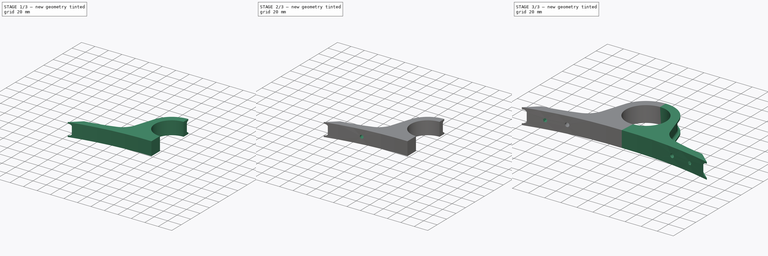
[diagram: build sequence overview — one tinted view per stage of 3, left to right]
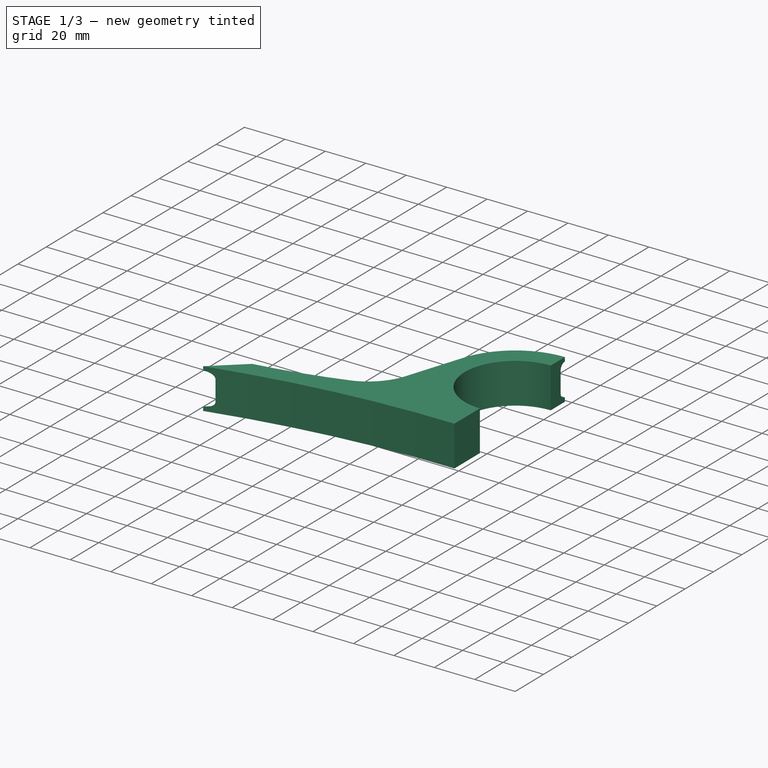
[diagram: stage 1 of 3 — iso view after this stage's code; geometry added in this stage tinted green]
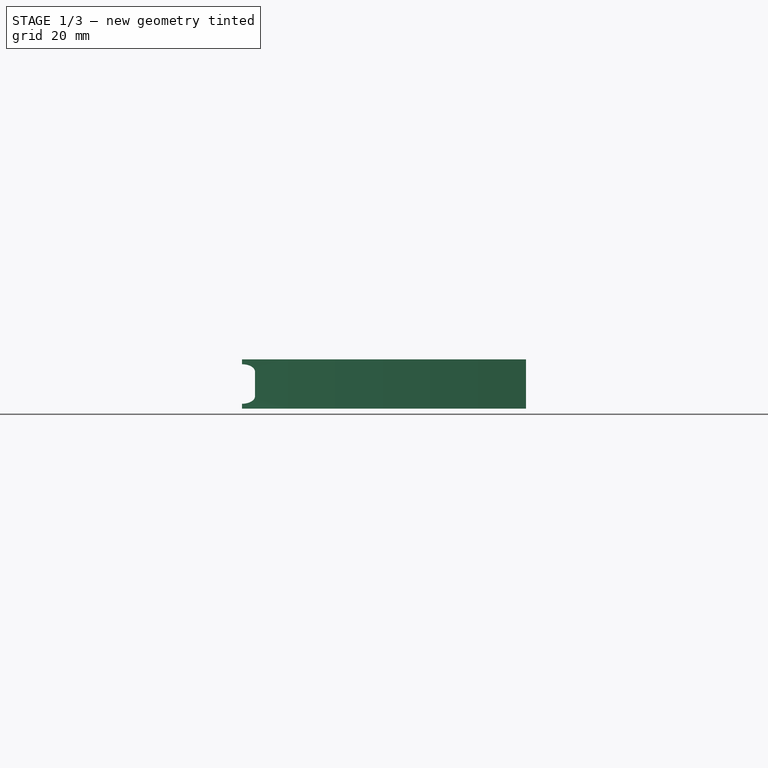
[diagram: stage 1 of 3 — front view after this stage's code; geometry added in this stage tinted green]
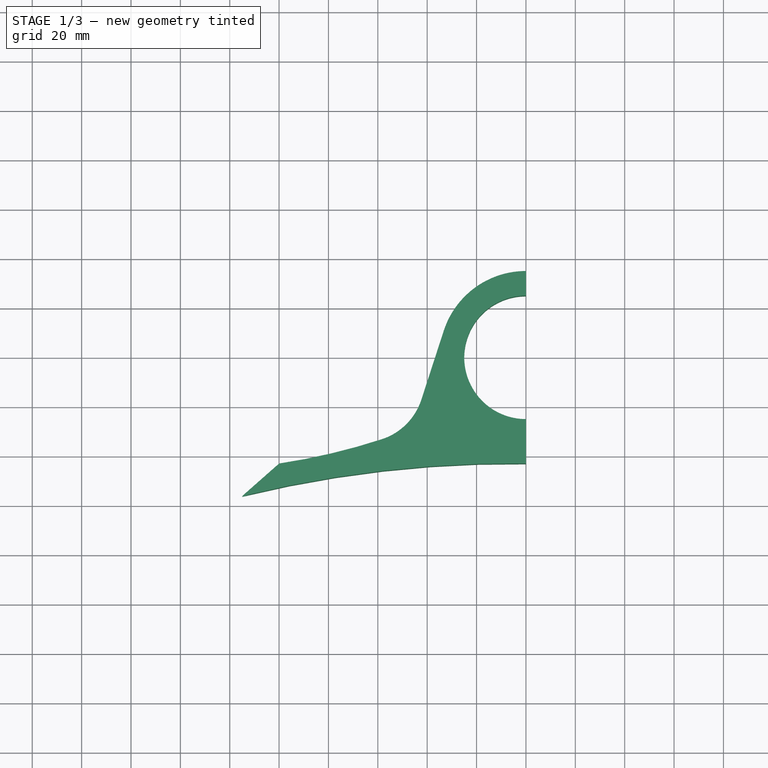
[diagram: stage 1 of 3 — top view after this stage's code; geometry added in this stage tinted green]
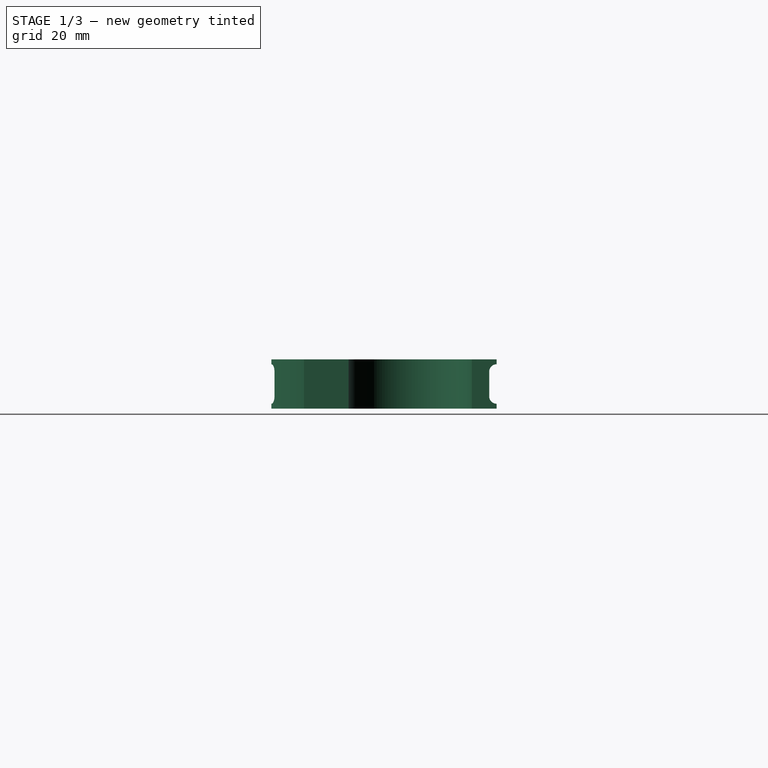
[diagram: stage 1 of 3 — right view after this stage's code; geometry added in this stage tinted green]
FCSTD DOCUMENT  (FreeCAD 0.20R29410 (Git))
Label: Mud_Guard_Mount
License: All rights reserved
LicenseURL: http://en.wikipedia.org/wiki/All_rights_reserved
objects: Sketcher::SketchObject×7, PartDesign::Pad×3, PartDesign::Pocket×2, PartDesign::SubtractivePipe×1, PartDesign::Mirrored×1, PartDesign::Body×1
note: 21 computed .brp shape members not serialized (recipe doc carries the construction recipe); baked Part::Feature solids carry a one-line shape summary decoded from their .brp

FEATURE [Sketcher::SketchObject] Sketch
  FullyConstrained = false
  MapMode = 5
  Support = -> [XY_Plane]
  sketch-geometry (11):
    g0: ArcOfCircle CenterX=0 CenterY=0 CenterZ=0 NormalX=0 NormalY=0 NormalZ=1 AngleXU=0 Radius=25 StartAngle=1.5708 EndAngle=4.71239
    g1: LineSegment StartX=0 StartY=0 StartZ=0 EndX=-56.7788 EndY=18.4486 EndZ=0
    g2: LineSegment StartX=0 StartY=0 StartZ=0 EndX=-53.8305 EndY=-21.7489 EndZ=0
    g3: ArcOfCircle CenterX=0 CenterY=0 CenterZ=0 NormalX=0 NormalY=0 NormalZ=1 AngleXU=0 Radius=35 StartAngle=1.5708 EndAngle=2.82743
    g4: LineSegment StartX=-33.287 StartY=10.8156 StartZ=0 EndX=-42.3623 EndY=-17.1155 EndZ=0
    g5: ArcOfCircle CenterX=-66.1388 CenterY=-9.39007 CenterZ=0 NormalX=0 NormalY=0 NormalZ=1 AngleXU=0 Radius=25 StartAngle=5.02689 EndAngle=5.96903
    g6: ArcOfCircle CenterX=-138.834 CenterY=214.084 CenterZ=0 NormalX=0 NormalY=0 NormalZ=1 AngleXU=0 Radius=260 StartAngle=4.86231 EndAngle=5.02689
    g7: LineSegment StartX=-4.6e-15 StartY=-25 StartZ=0 EndX=-4.6e-15 EndY=-43 EndZ=0
    g8: LineSegment StartX=1.5e-15 StartY=35 StartZ=0 EndX=1.5e-15 EndY=25 EndZ=0
    g9: ArcOfCircle CenterX=-5.34942 CenterY=-502.969 CenterZ=0 NormalX=0 NormalY=0 NormalZ=1 AngleXU=0 Radius=460 StartAngle=1.55917 EndAngle=1.81148
    g10: LineSegment StartX=-100 StartY=-43 StartZ=0 EndX=-115 EndY=-56.2288 EndZ=0
  constraints (31):
    c: Coincident(g0,g-1)
    c: Diameter(g0) = 50
    c: Coincident(g1,g0)
    c: Coincident(g2,g0)
    c: Angle(g1,g2) = 0.698132
    c: Angle(g-2,g1) = 1.25664
    c: Coincident(g3,g0)
    c: PointOnObject(g3,g-2)
    c: PointOnObject(g3,g1)
    c: Radius(g3) = 35
    c: PointOnObject(g4,g2)
    c: Tangent(g4,g3) = -1.5708
    c: Tangent(g5,g4) = 1.5708
    c: Radius(g5) = 25
    c: Tangent(g6,g5) = -1.5708
    c: PointOnObject(g7,g-2)
    c: Vertical(g7)
    c: Horizontal(g7,g6)
    c: Coincident(g8,g3)
    c: Vertical(g8)
    c: Coincident(g0,g7)
    c: Coincident(g0,g8)
    c: Coincident(g9,g7)
    c: Coincident(g10,g6)
    c: Coincident(g10,g9)
    c: Radius(g6) = 260
    c: Radius(g9) = 460
    c: DistanceY(g7,g7) = 18
    c: Distance(g10) = 20
    c: DistanceX(g9,g7) = 115
    c: DistanceX(g6,g7) = 100
FEATURE [PartDesign::Pad] Pad
  Direction = (0,0,1)
  Length = 20
  Length2 = 10
  Profile = -> Sketch
  ReferenceAxis = -> Sketch [N_Axis]
  Type = 0
FEATURE [Sketcher::SketchObject] Sketch001
  ExternalGeometry = -> [Pad]
  FullyConstrained = true
  MapMode = 5
  Placement = pos=(1.5e-15,0,0) rot=(0.57735,0.57735,0.57735;2.0944rad)
  Support = -> [Pad]
  sketch-geometry (4):
    g0: ArcOfCircle CenterX=35 CenterY=15 CenterZ=0 NormalX=0 NormalY=0 NormalZ=1 AngleXU=0 Radius=3 StartAngle=1e-16 EndAngle=3.14159
    g1: ArcOfCircle CenterX=35 CenterY=5 CenterZ=0 NormalX=0 NormalY=0 NormalZ=1 AngleXU=0 Radius=3 StartAngle=3.14159 EndAngle=6.28319
    g2: LineSegment StartX=32 StartY=15 StartZ=0 EndX=32 EndY=5 EndZ=0
    g3: LineSegment StartX=38 StartY=5 StartZ=0 EndX=38 EndY=15 EndZ=0
  constraints (10):
    c: Tangent(g0,g2) = -1.5708
    c: Tangent(g2,g1) = -1.5708
    c: Tangent(g1,g3) = -1.5708
    c: Tangent(g3,g0) = -1.5708
    c: Equal(g0,g1)
    c: Vertical(g2)
    c: Vertical(g0,g-3)
    c: DistanceY(g0,g-3) = 5
    c: DistanceY(g-4,g1) = 5
    c: Radius(g0) = 3
FEATURE [PartDesign::SubtractivePipe] SubtractivePipe
  AuxilleryCurvelinear = true
  AuxillerySpineTangent = false
  BaseFeature = -> Pad
  Binormal = (0,0,0)
  Mode = 0
  Profile = -> Sketch001
  Spine = -> Pad [Edge26,Edge24,Edge21,Edge18,Edge15]
  SpineTangent = false
  Transformation = 0
  Transition = 0
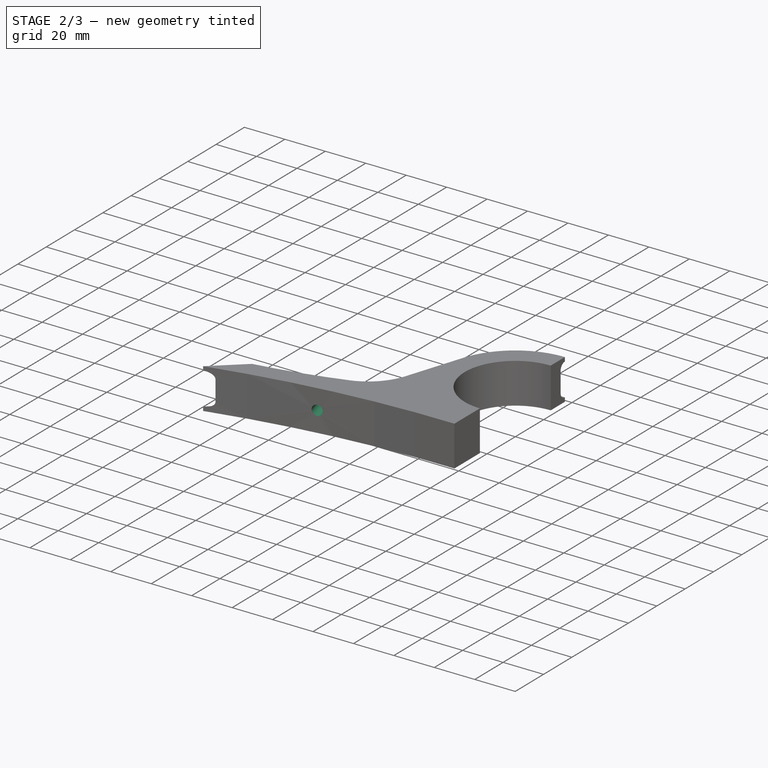
[diagram: stage 2 of 3 — iso view after this stage's code; geometry added in this stage tinted green]
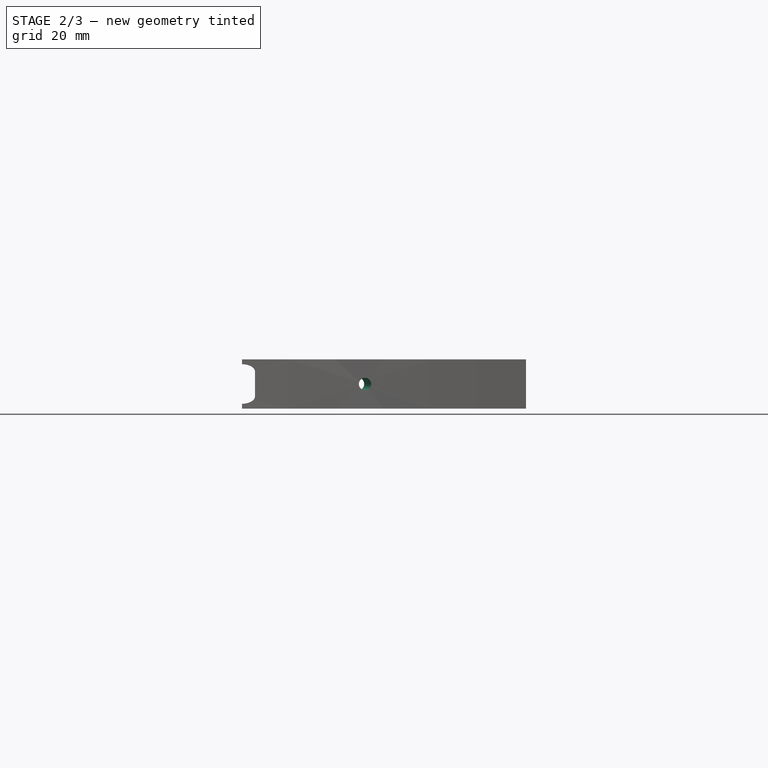
[diagram: stage 2 of 3 — front view after this stage's code; geometry added in this stage tinted green]
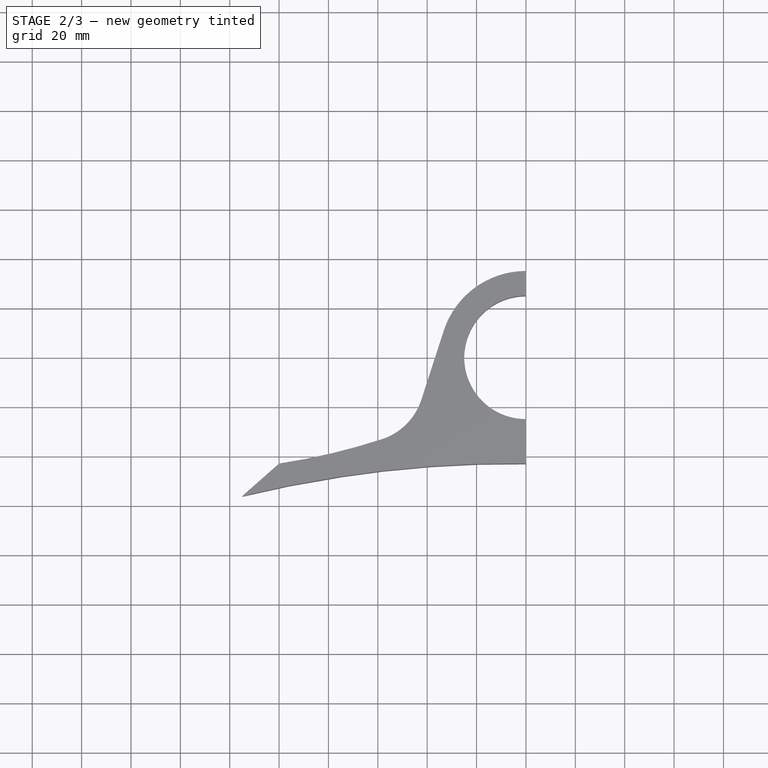
[diagram: stage 2 of 3 — top view after this stage's code; geometry added in this stage tinted green]
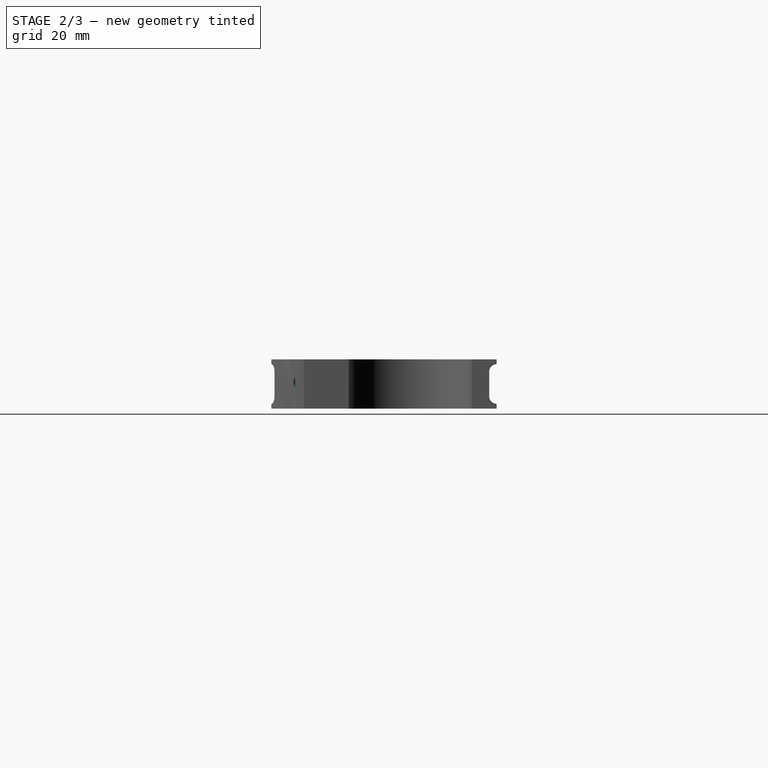
[diagram: stage 2 of 3 — right view after this stage's code; geometry added in this stage tinted green]
FEATURE [Sketcher::SketchObject] Sketch002
  AttachmentOffset = pos=(0,0,10) rot=(0,0,1;0rad)
  ExternalGeometry = -> [Sketch,SubtractivePipe]
  FullyConstrained = false
  MapMode = 5
  Placement = pos=(0,0,10) rot=(0,0,1;0rad)
  Support = -> [XY_Plane]
  sketch-geometry (4):
    g0: LineSegment StartX=-138.834 StartY=214.084 StartZ=0 EndX=-90.9694 EndY=-44.5243 EndZ=0
    g1: LineSegment StartX=-138.834 StartY=214.084 StartZ=0 EndX=-67.3914 EndY=-39.0271 EndZ=0
    g2: LineSegment StartX=-90.9694 StartY=-44.5243 StartZ=0 EndX=-94.6964 EndY=-24.3879 EndZ=0
    g3: LineSegment StartX=-67.3914 StartY=-39.0271 StartZ=0 EndX=-72.281 EndY=-21.7042 EndZ=0
  constraints (8):
    c: Coincident(g0,g-3)
    c: Coincident(g1,g0)
    c: Coincident(g2,g0)
    c: PointOnObject(g2,g0)
    c: Coincident(g3,g1)
    c: PointOnObject(g3,g1)
    c: PointOnObject(g2,g-4)
    c: PointOnObject(g3,g-4)
FEATURE [Sketcher::SketchObject] Sketch003  label="HoleFeatureSketch"
  FullyConstrained = true
  MapMode = 47
  Placement = pos=(-67.3914,-39.0271,10) rot=(-0.097415,0.703744,0.703744;3.33581rad)
  Support = -> [Sketch002]
  sketch-geometry (1):
    g0: Circle CenterX=0 CenterY=0 CenterZ=0 NormalX=0 NormalY=0 NormalZ=1 AngleXU=0 Radius=3.5
  constraints (2):
    c: Coincident(g0,g-1)
    c: Diameter(g0) = 7
FEATURE [PartDesign::Pad] Pad001
  BaseFeature = -> SubtractivePipe
  Direction = (-0.271643,0.962398,-2e-16)
  Length = 2
  Length2 = 1
  Profile = -> Sketch003
  ReferenceAxis = -> Sketch003 [N_Axis]
  Type = 4
FEATURE [Sketcher::SketchObject] Sketch004
  ExternalGeometry = -> [Pad001]
  FullyConstrained = false
  MapMode = 5
  Placement = pos=(4.68672,-16.6045,1e-16) rot=(-0.097415,0.703744,0.703744;3.33581rad)
  Support = -> [Pad001]
  sketch-geometry (3):
    g0: Circle CenterX=75.4588 CenterY=10 CenterZ=0 NormalX=0 NormalY=0 NormalZ=1 AngleXU=0 Radius=2.50038
    g1: GeomPoint X=77.9579 Y=10.0811 Z=0
    g2: GeomPoint X=78.9579 Y=10.0811 Z=0
  constraints (5):
    c: Coincident(g0,g-3)
    c: PointOnObject(g1,g0)
    c: PointOnObject(g2,g-3)
    c: Horizontal(g1,g2)
    c: DistanceX(g1,g2) = 1
FEATURE [PartDesign::Pocket] Pocket
  BaseFeature = -> Pad001
  Direction = (0.271643,-0.962398,1e-16)
  Length = 5
  Length2 = 5
  Profile = -> Sketch004
  ReferenceAxis = -> Sketch004 [N_Axis]
  Type = 1
FEATURE [Sketcher::SketchObject] Sketch005
  FullyConstrained = true
  MapMode = 47
  Placement = pos=(-90.9694,-44.5243,10) rot=(-0.06475,0.705623,0.705623;3.27091rad)
  Support = -> [Sketch002]
  sketch-geometry (6):
    g0: LineSegment StartX=0 StartY=3.5 StartZ=0 EndX=-3.3287 EndY=1.08156 EndZ=0
    g1: LineSegment StartX=-3.3287 StartY=1.08156 StartZ=0 EndX=-2.05725 EndY=-2.83156 EndZ=0
    g2: LineSegment StartX=-2.05725 StartY=-2.83156 StartZ=0 EndX=2.05725 EndY=-2.83156 EndZ=0
    g3: LineSegment StartX=2.05725 StartY=-2.83156 StartZ=0 EndX=3.3287 EndY=1.08156 EndZ=0
    g4: LineSegment StartX=3.3287 StartY=1.08156 StartZ=0 EndX=0 EndY=3.5 EndZ=0
    g5: Circle CenterX=0 CenterY=0 CenterZ=0 NormalX=0 NormalY=0 NormalZ=1 AngleXU=0 Radius=3.5
  constraints (14):
    c: Coincident(g0,g1)
    c: Coincident(g1,g2)
    c: Coincident(g2,g3)
    c: Coincident(g3,g4)
    c: Coincident(g4,g0)
    c: Equal(g0, g1-g4) x4
    c: PointOnObject(g0,g5)
    c: PointOnObject(g1,g5)
    c: PointOnObject(g2,g5)
    c: PointOnObject(g3,g5)
    c: PointOnObject(g4,g5)
    c: Coincident(g5,g-1)
    c: PointOnObject(g4,g-2)
    c: Diameter(g5) = 7
FEATURE [PartDesign::Pad] Pad002
  BaseFeature = -> Pocket
  Direction = (-0.181993,0.9833,-2e-16)
  Length = 2
  Length2 = 1
  Profile = -> Sketch005
  ReferenceAxis = -> Sketch005 [N_Axis]
  Type = 4
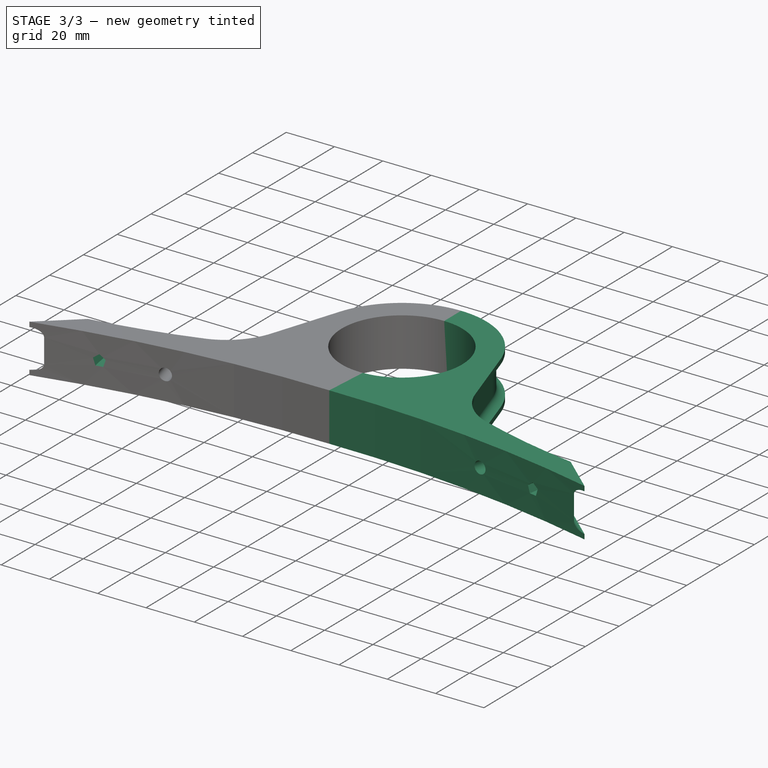
[diagram: stage 3 of 3 — iso view after this stage's code; geometry added in this stage tinted green]
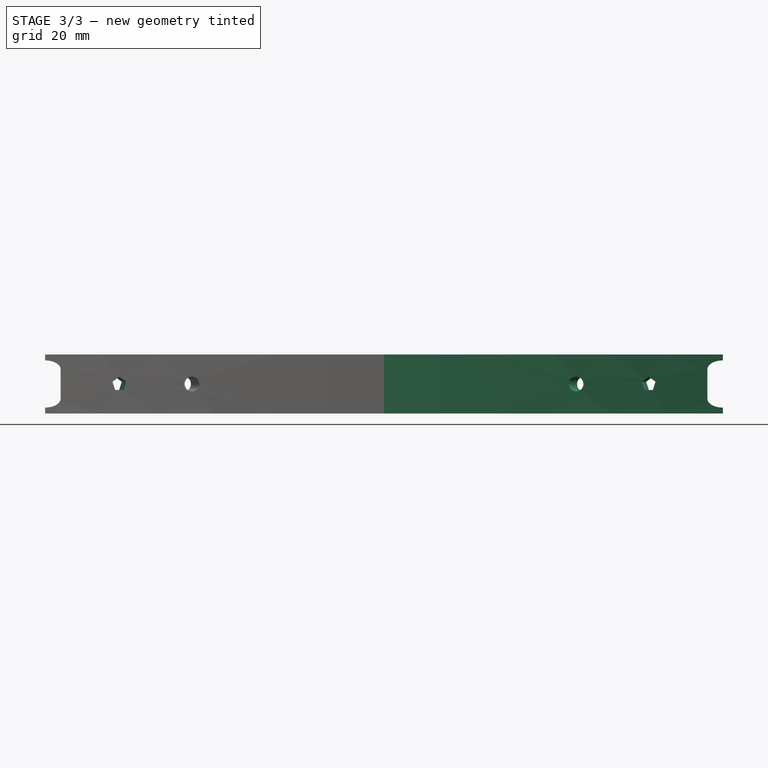
[diagram: stage 3 of 3 — front view after this stage's code; geometry added in this stage tinted green]
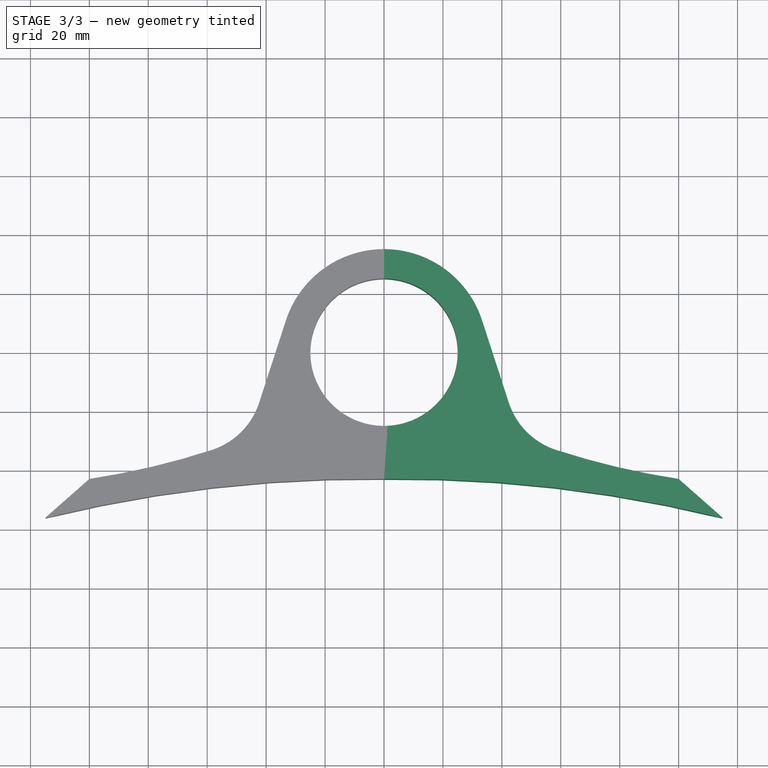
[diagram: stage 3 of 3 — top view after this stage's code; geometry added in this stage tinted green]
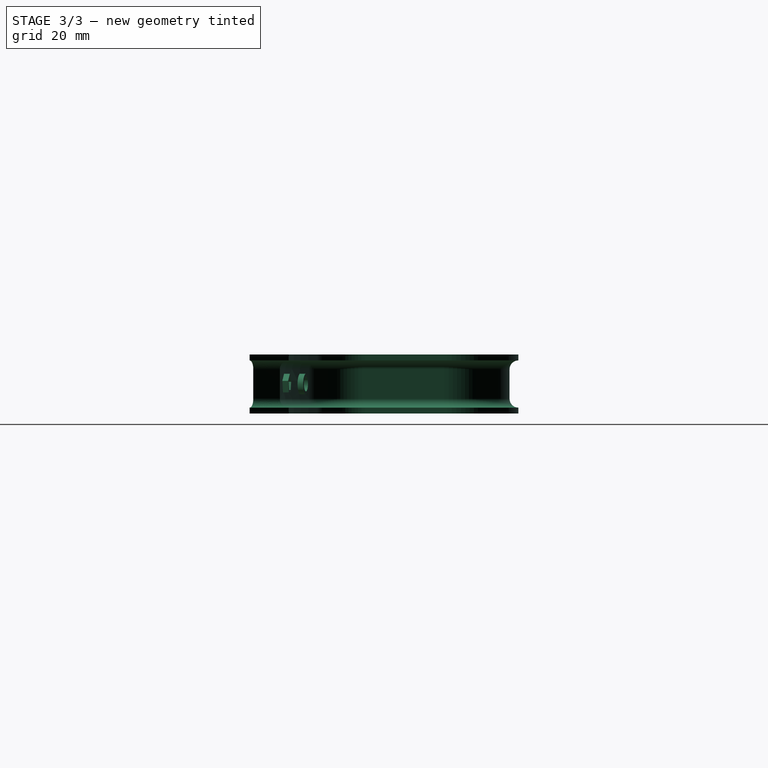
[diagram: stage 3 of 3 — right view after this stage's code; geometry added in this stage tinted green]
FEATURE [Sketcher::SketchObject] Sketch006
  ExternalGeometry = -> [Pad002]
  FullyConstrained = true
  MapMode = 5
  Placement = pos=(4.59076,-24.8037,-2.4e-15) rot=(-0.06475,0.705623,0.705623;3.27091rad)
  Support = -> [Pad002]
  sketch-geometry (6):
    g0: LineSegment StartX=99.0228 StartY=7.97746 StartZ=0 EndX=99.931 EndY=10.7725 EndZ=0
    g1: LineSegment StartX=99.931 StartY=10.7725 StartZ=0 EndX=97.5533 EndY=12.5 EndZ=0
    g2: LineSegment StartX=97.5533 StartY=12.5 StartZ=0 EndX=95.1757 EndY=10.7725 EndZ=0
    g3: LineSegment StartX=95.1757 StartY=10.7725 StartZ=0 EndX=96.0839 EndY=7.97746 EndZ=0
    g4: LineSegment StartX=96.0839 StartY=7.97746 StartZ=0 EndX=99.0228 EndY=7.97746 EndZ=0
    g5: Circle CenterX=97.5533 CenterY=10 CenterZ=0 NormalX=0 NormalY=0 NormalZ=1 AngleXU=0 Radius=2.5
  constraints (15):
    c: Coincident(g0,g1)
    c: Coincident(g1,g2)
    c: Coincident(g2,g3)
    c: Coincident(g3,g4)
    c: Coincident(g4,g0)
    c: Equal(g0, g1-g4) x4
    c: PointOnObject(g0,g5)
    c: PointOnObject(g1,g5)
    c: PointOnObject(g2,g5)
    c: PointOnObject(g3,g5)
    c: PointOnObject(g4,g5)
    c: Vertical(g1,g-3)
    c: DistanceY(g1,g-3) = 1
    c: Distance(g0,g-4) = 1
    c: Distance(g2,g-7) = 1
FEATURE [PartDesign::Pocket] Pocket001
  BaseFeature = -> Pad002
  Direction = (0.181993,-0.9833,-2e-16)
  Length = 5
  Length2 = 5
  Profile = -> Sketch006
  ReferenceAxis = -> Sketch006 [N_Axis]
  Type = 1
FEATURE [PartDesign::Mirrored] Mirrored
  BaseFeature = -> Pocket001
  MirrorPlane = -> Sketch [V_Axis]
  Originals = -> [Pad,SubtractivePipe,Pad001,Pocket,Pad002,Pocket001]
FEATURE [PartDesign::Body] Body
  Group = -> [Sketch,Pad,Sketch001,SubtractivePipe,Sketch002,Sketch003,Pad001,Sketch004,Pocket,Sketch005,Pad002,Sketch006,Pocket001,Mirrored]
  Origin = -> Origin
  Tip = -> Mirrored
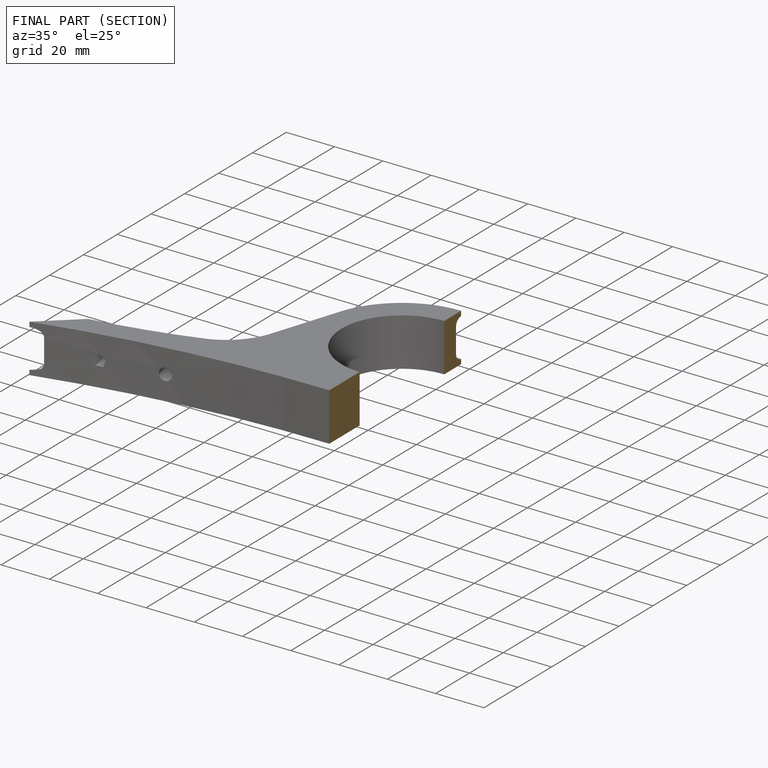
[diagram: finished part — half-section view (interior)]
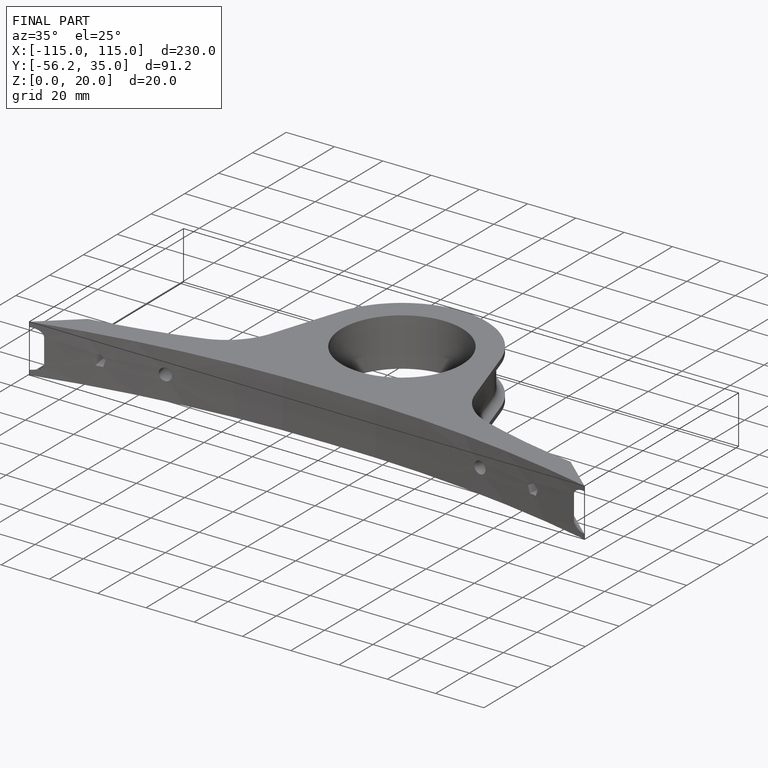
[diagram: finished part — iso view with bounding-box wireframe]
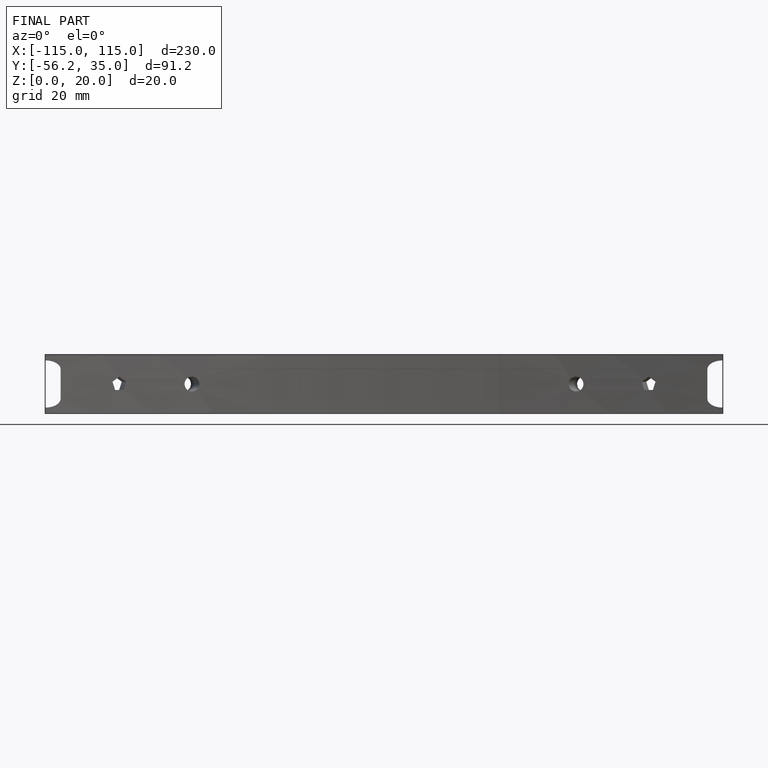
[diagram: finished part — front view with bounding-box wireframe]
